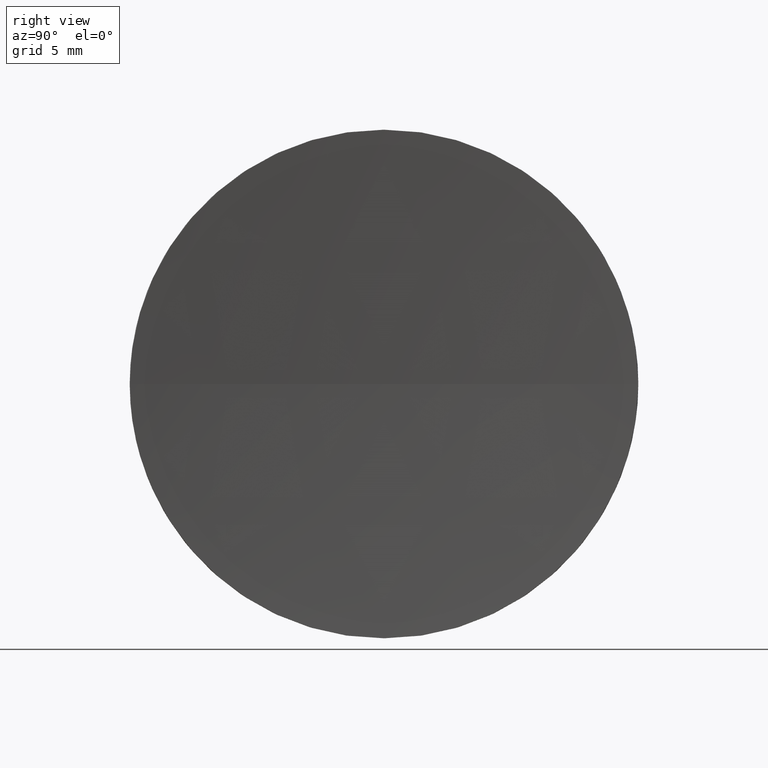
[diagram: clean part render]
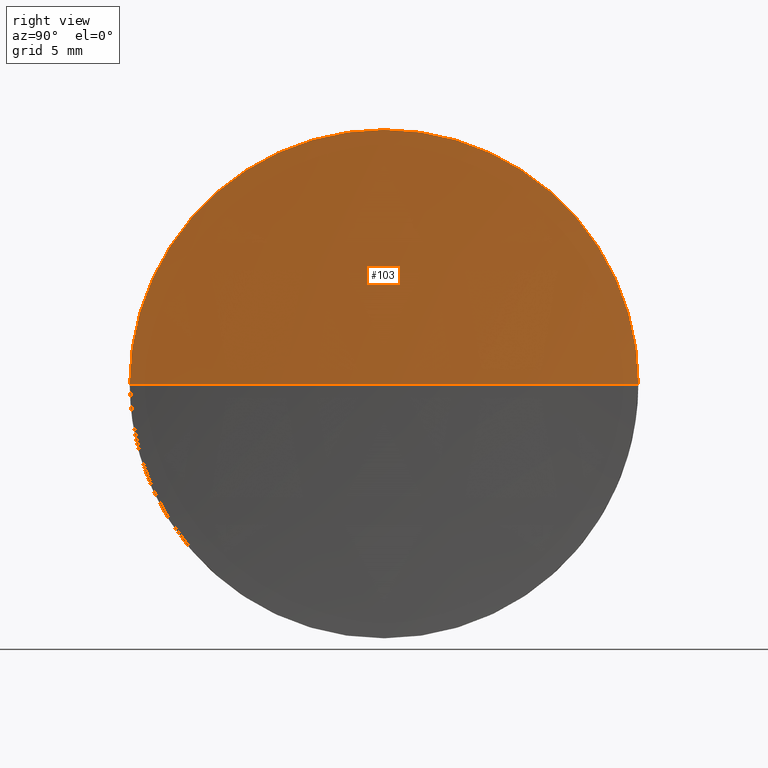
[diagram: same view with one face highlighted and labeled with its STEP entity id]
A machine part, right view. The second image highlights one B-rep face of the part: STEP entity #103.
In plain terms, the highlighted spherical surface has radius 150 mm.
Its self-contained STEP definition (entity closure, byte-faithful):
#4 = CARTESIAN_POINT ( 'NONE',  ( 121.6143964708713000, 69.37802112337243400, 12.50000000000002500 ) ) ;
#8 = AXIS2_PLACEMENT_3D ( 'NONE', #107, #171, #94 ) ;
#10 = CARTESIAN_POINT ( 'NONE',  ( 121.6143964708713000, 69.37802112337243400, 0.0000000000000000000 ) ) ;
#12 = DIRECTION ( 'NONE',  ( 0.0000000000000000000, 0.0000000000000000000, 1.000000000000000000 ) ) ;
#19 = VERTEX_POINT ( 'NONE', #24 ) ;
#23 = EDGE_LOOP ( 'NONE', ( #105, #91, #185, #168 ) ) ;
#24 = CARTESIAN_POINT ( 'NONE',  ( 121.6143964708713000, 56.87802112337238500, 0.0000000000000000000 ) ) ;
#29 = CARTESIAN_POINT ( 'NONE',  ( 121.6143964708713000, 69.37802112337243400, 0.0000000000000000000 ) ) ;
#30 = DIRECTION ( 'NONE',  ( 0.0000000000000000000, 0.0000000000000000000, 1.000000000000000000 ) ) ;
#32 = DIRECTION ( 'NONE',  ( 0.0000000000000000000, -1.224646799147353200E-016, 1.000000000000000000 ) ) ;
#40 = EDGE_CURVE ( 'NONE', #19, #93, #183, .T. ) ;
#52 = AXIS2_PLACEMENT_3D ( 'NONE', #139, #12, #69 ) ;
#53 = CARTESIAN_POINT ( 'NONE',  ( 121.0926557596387600, 69.37802112337247700, 0.0000000000000000000 ) ) ;
#54 = DIRECTION ( 'NONE',  ( 0.0000000000000000000, -1.000000000000000000, -1.224646799147353200E-016 ) ) ;
#68 = FACE_OUTER_BOUND ( 'NONE', #23, .T. ) ;
#69 = DIRECTION ( 'NONE',  ( 0.0000000000000000000, -1.000000000000000000, 0.0000000000000000000 ) ) ;
#70 = DIRECTION ( 'NONE',  ( 0.0000000000000000000, 0.0000000000000000000, 1.000000000000000000 ) ) ;
#76 = CIRCLE ( 'NONE', #77, 12.50000000000002500 ) ;
#77 = AXIS2_PLACEMENT_3D ( 'NONE', #29, #87, #70 ) ;
#79 = DIRECTION ( 'NONE',  ( -1.000000000000000000, -0.0000000000000000000, -0.0000000000000000000 ) ) ;
#80 = CIRCLE ( 'NONE', #117, 12.50000000000002500 ) ;
#86 = CARTESIAN_POINT ( 'NONE',  ( 121.6143964708713000, 81.87802112337256200, 1.530808498934198600E-015 ) ) ;
#87 = DIRECTION ( 'NONE',  ( -1.000000000000000000, -0.0000000000000000000, -0.0000000000000000000 ) ) ;
#91 = ORIENTED_EDGE ( 'NONE', *, *, #146, .F. ) ;
#92 = VERTEX_POINT ( 'NONE', #86 ) ;
#93 = VERTEX_POINT ( 'NONE', #53 ) ;
#94 = DIRECTION ( 'NONE',  ( -1.000000000000000000, 0.0000000000000000000, 0.0000000000000000000 ) ) ;
#103 = ADVANCED_FACE ( 'NONE', ( #68 ), #111, .F. ) ;
#105 = ORIENTED_EDGE ( 'NONE', *, *, #158, .F. ) ;
#107 = CARTESIAN_POINT ( 'NONE',  ( 271.0926557596387700, 69.37802112337249100, 0.0000000000000000000 ) ) ;
#111 = SPHERICAL_SURFACE ( 'NONE', #52, 150.0000000000000000 ) ;
#113 = CARTESIAN_POINT ( 'NONE',  ( 271.0926557596387700, 69.37802112337249100, 0.0000000000000000000 ) ) ;
#116 = CIRCLE ( 'NONE', #152, 150.0000000000000000 ) ;
#117 = AXIS2_PLACEMENT_3D ( 'NONE', #10, #79, #30 ) ;
#122 = VERTEX_POINT ( 'NONE', #4 ) ;
#139 = CARTESIAN_POINT ( 'NONE',  ( 271.0926557596387700, 69.37802112337249100, 0.0000000000000000000 ) ) ;
#146 = EDGE_CURVE ( 'NONE', #122, #92, #76, .T. ) ;
#152 = AXIS2_PLACEMENT_3D ( 'NONE', #113, #32, #54 ) ;
#158 = EDGE_CURVE ( 'NONE', #92, #93, #116, .T. ) ;
#168 = ORIENTED_EDGE ( 'NONE', *, *, #40, .T. ) ;
#171 = DIRECTION ( 'NONE',  ( 0.0000000000000000000, 0.0000000000000000000, -1.000000000000000000 ) ) ;
#172 = EDGE_CURVE ( 'NONE', #19, #122, #80, .T. ) ;
#183 = CIRCLE ( 'NONE', #8, 150.0000000000000000 ) ;
#185 = ORIENTED_EDGE ( 'NONE', *, *, #172, .F. ) ;